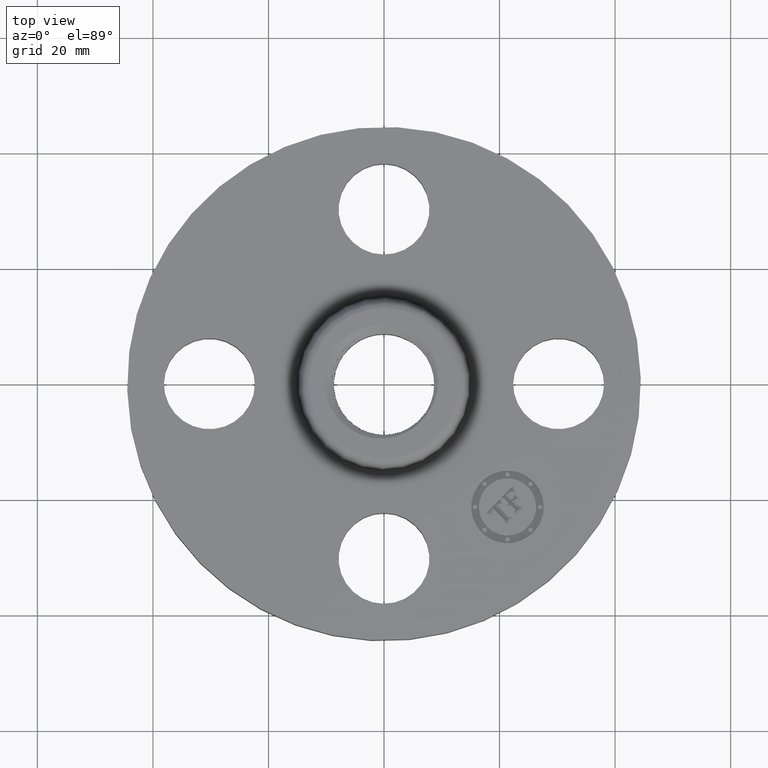
[diagram: clean part render]
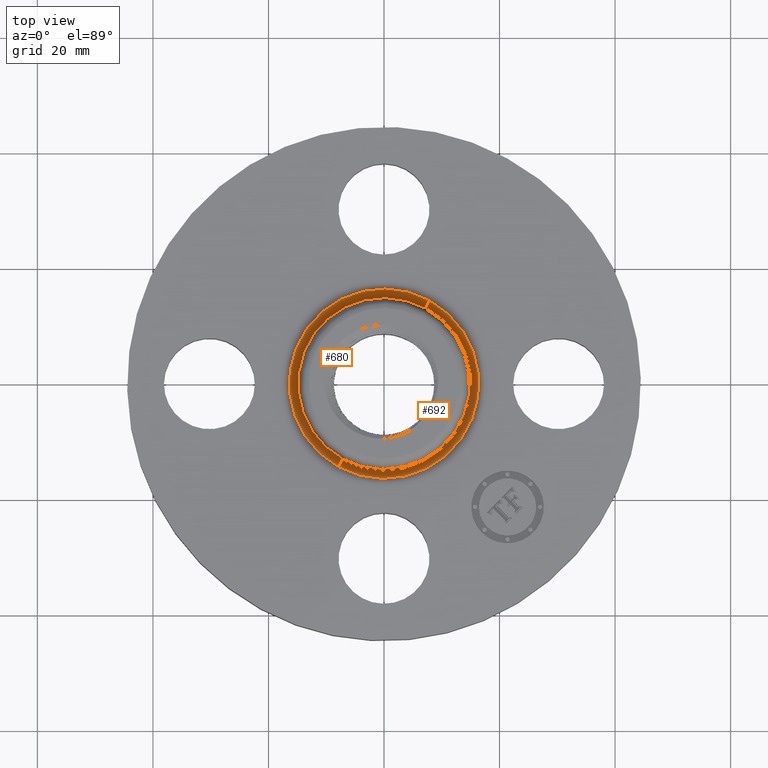
[diagram: same view with one multi-face feature highlighted, each face labeled with its STEP entity id]
A machine part, top view. The highlighted faces form ONE feature: a constant-radius fillet chain: 2 tangent blend faces with common blend radius 1.524 mm. The faces share edges in the B-rep.
Their STEP definitions:
[1] entity #692 (Torus):
#640=AXIS2_PLACEMENT_3D('Circle Axis2P3D',#638,#639,$) ;
#653=AXIS2_PLACEMENT_3D('Torus Axis2P3D',#650,#651,#652) ;
#666=AXIS2_PLACEMENT_3D('Circle Axis2P3D',#664,#665,$) ;
#671=AXIS2_PLACEMENT_3D('Circle Axis2P3D',#669,#670,$) ;
#683=AXIS2_PLACEMENT_3D('Circle Axis2P3D',#681,#682,$) ;
#616=CARTESIAN_POINT('Vertex',(-0.281066823783,-0.514489369916,0.429581109342)) ;
#618=CARTESIAN_POINT('Vertex',(0.281066823783,0.514489369916,0.429581109342)) ;
#638=CARTESIAN_POINT('Axis2P3D Location',(0.,0.,0.429581109342)) ;
#650=CARTESIAN_POINT('Axis2P3D Location',(0.,0.,0.440000000002)) ;
#659=CARTESIAN_POINT('Vertex',(-0.309395343028,-0.566344376568,0.380000000002)) ;
#661=CARTESIAN_POINT('Vertex',(0.309395343028,0.566344376568,0.380000000002)) ;
#664=CARTESIAN_POINT('Axis2P3D Location',(-0.309395343028,-0.566344376568,0.440000000002)) ;
#669=CARTESIAN_POINT('Axis2P3D Location',(0.309395343028,0.566344376568,0.440000000002)) ;
#681=CARTESIAN_POINT('Axis2P3D Location',(0.,0.,0.380000000002)) ;
#639=DIRECTION('Axis2P3D Direction',(0.,0.,-0.0393700787402)) ;
#651=DIRECTION('Axis2P3D Direction',(0.,0.,-0.0393700787402)) ;
#652=DIRECTION('Axis2P3D XDirection',(0.0188750212049,0.0345504945626,0.)) ;
#665=DIRECTION('Axis2P3D Direction',(0.0345504945626,-0.0188750212049,0.)) ;
#670=DIRECTION('Axis2P3D Direction',(-0.0345504945626,0.0188750212049,0.)) ;
#682=DIRECTION('Axis2P3D Direction',(0.,0.,-0.0393700787402)) ;
#687=ORIENTED_EDGE('',*,*,#685,.F.) ;
#688=ORIENTED_EDGE('',*,*,#673,.T.) ;
#689=ORIENTED_EDGE('',*,*,#642,.T.) ;
#690=ORIENTED_EDGE('',*,*,#668,.F.) ;
#692=ADVANCED_FACE('PartBody',(#691),#654,.F.) ;
#641=CIRCLE('generated circle',#640,0.586257512692) ;
#667=CIRCLE('generated circle',#666,0.0600000000002) ;
#672=CIRCLE('generated circle',#671,0.0600000000002) ;
#684=CIRCLE('generated circle',#683,0.645345977873) ;
#654=TOROIDAL_SURFACE('homeo Torus',#653,0.645345977873,0.0600000000002) ;
#642=EDGE_CURVE('',#619,#617,#641,.T.) ;
#668=EDGE_CURVE('',#660,#617,#667,.T.) ;
#673=EDGE_CURVE('',#662,#619,#672,.T.) ;
#685=EDGE_CURVE('',#662,#660,#684,.T.) ;
#686=EDGE_LOOP('',(#687,#688,#689,#690)) ;
#691=FACE_OUTER_BOUND('',#686,.T.) ;
#617=VERTEX_POINT('',#616) ;
#619=VERTEX_POINT('',#618) ;
#660=VERTEX_POINT('',#659) ;
#662=VERTEX_POINT('',#661) ;
[2] entity #680 (Torus):
#614=AXIS2_PLACEMENT_3D('Circle Axis2P3D',#612,#613,$) ;
#653=AXIS2_PLACEMENT_3D('Torus Axis2P3D',#650,#651,#652) ;
#657=AXIS2_PLACEMENT_3D('Circle Axis2P3D',#655,#656,$) ;
#666=AXIS2_PLACEMENT_3D('Circle Axis2P3D',#664,#665,$) ;
#671=AXIS2_PLACEMENT_3D('Circle Axis2P3D',#669,#670,$) ;
#612=CARTESIAN_POINT('Axis2P3D Location',(0.,0.,0.429581109342)) ;
#616=CARTESIAN_POINT('Vertex',(-0.281066823783,-0.514489369916,0.429581109342)) ;
#618=CARTESIAN_POINT('Vertex',(0.281066823783,0.514489369916,0.429581109342)) ;
#650=CARTESIAN_POINT('Axis2P3D Location',(0.,0.,0.440000000002)) ;
#655=CARTESIAN_POINT('Axis2P3D Location',(0.,0.,0.380000000002)) ;
#659=CARTESIAN_POINT('Vertex',(-0.309395343028,-0.566344376568,0.380000000002)) ;
#661=CARTESIAN_POINT('Vertex',(0.309395343028,0.566344376568,0.380000000002)) ;
#664=CARTESIAN_POINT('Axis2P3D Location',(-0.309395343028,-0.566344376568,0.440000000002)) ;
#669=CARTESIAN_POINT('Axis2P3D Location',(0.309395343028,0.566344376568,0.440000000002)) ;
#613=DIRECTION('Axis2P3D Direction',(0.,0.,-0.0393700787402)) ;
#651=DIRECTION('Axis2P3D Direction',(0.,0.,-0.0393700787402)) ;
#652=DIRECTION('Axis2P3D XDirection',(0.0188750212049,0.0345504945626,0.)) ;
#656=DIRECTION('Axis2P3D Direction',(0.,0.,-0.0393700787402)) ;
#665=DIRECTION('Axis2P3D Direction',(0.0345504945626,-0.0188750212049,0.)) ;
#670=DIRECTION('Axis2P3D Direction',(-0.0345504945626,0.0188750212049,0.)) ;
#675=ORIENTED_EDGE('',*,*,#663,.F.) ;
#676=ORIENTED_EDGE('',*,*,#668,.T.) ;
#677=ORIENTED_EDGE('',*,*,#620,.T.) ;
#678=ORIENTED_EDGE('',*,*,#673,.F.) ;
#680=ADVANCED_FACE('PartBody',(#679),#654,.F.) ;
#615=CIRCLE('generated circle',#614,0.586257512692) ;
#658=CIRCLE('generated circle',#657,0.645345977873) ;
#667=CIRCLE('generated circle',#666,0.0600000000002) ;
#672=CIRCLE('generated circle',#671,0.0600000000002) ;
#654=TOROIDAL_SURFACE('homeo Torus',#653,0.645345977873,0.0600000000002) ;
#620=EDGE_CURVE('',#617,#619,#615,.T.) ;
#663=EDGE_CURVE('',#660,#662,#658,.T.) ;
#668=EDGE_CURVE('',#660,#617,#667,.T.) ;
#673=EDGE_CURVE('',#662,#619,#672,.T.) ;
#674=EDGE_LOOP('',(#675,#676,#677,#678)) ;
#679=FACE_OUTER_BOUND('',#674,.T.) ;
#617=VERTEX_POINT('',#616) ;
#619=VERTEX_POINT('',#618) ;
#660=VERTEX_POINT('',#659) ;
#662=VERTEX_POINT('',#661) ;